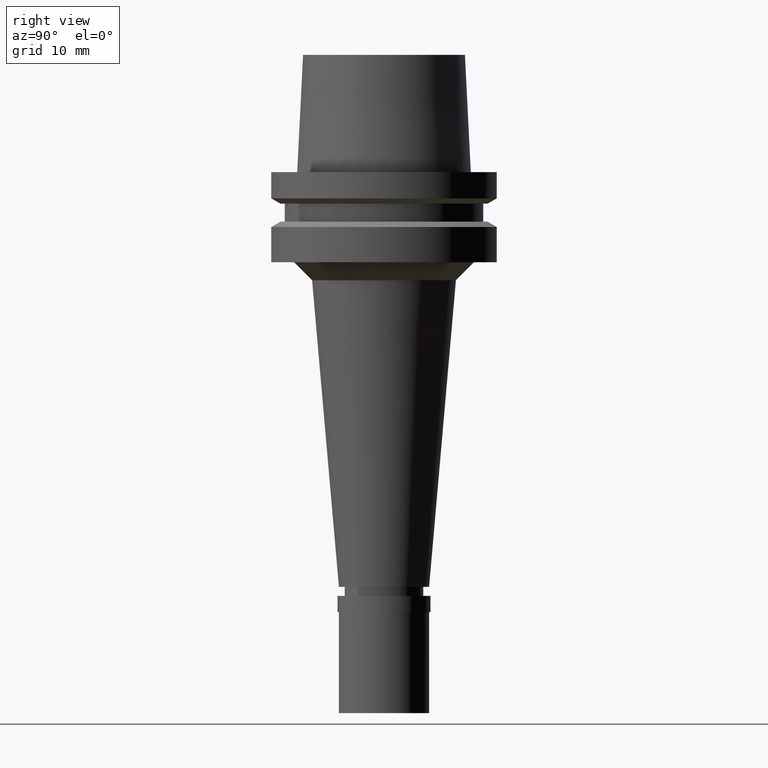
[diagram: clean part render]
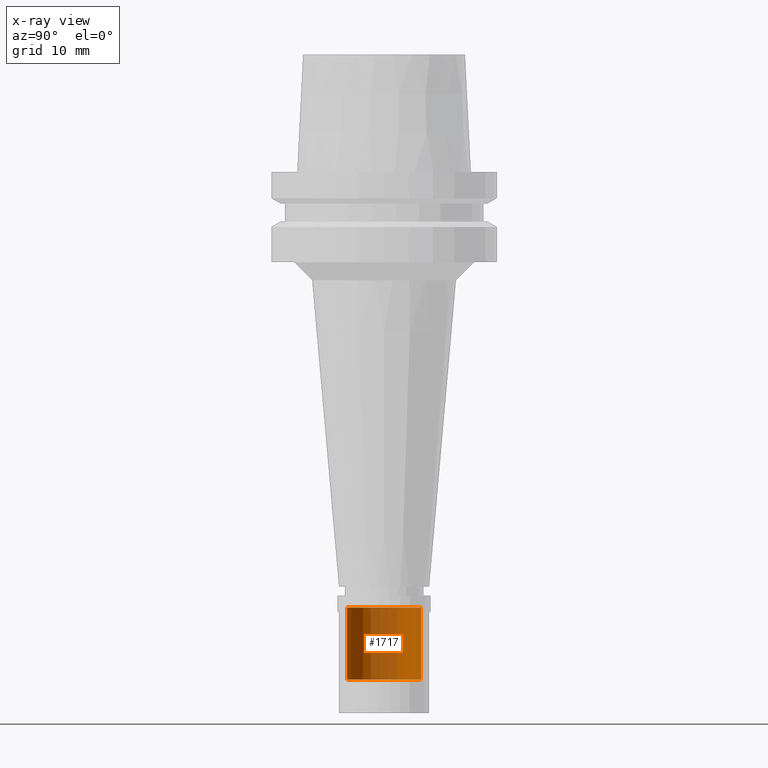
[diagram: x-ray — body ghosted, one internal face saturated and labeled with its STEP entity id]
A machine part, right view, then the same camera in x-ray: the body is ghosted and one INTERNAL B-rep face — a face not visible from any outside direction — is saturated and labeled: STEP entity #1717.
In plain terms, the highlighted cylindrical surface (partial cylindrical patch) has radius 4.1 mm, axis along (0, 0, 1).
Its self-contained STEP definition (entity closure, byte-faithful):
#183 = CARTESIAN_POINT ( 'NONE',  ( 0.0000000000000000000, 0.0000000000000000000, -56.30000000000000426 ) ) ;
#202 = ORIENTED_EDGE ( 'NONE', *, *, #501, .T. ) ;
#213 = CIRCLE ( 'NONE', #556, 4.100000000000000533 ) ;
#255 = VECTOR ( 'NONE', #283, 1000.000000000000000 ) ;
#283 = DIRECTION ( 'NONE',  ( 0.0000000000000000000, 0.0000000000000000000, -1.000000000000000000 ) ) ;
#343 = LINE ( 'NONE', #540, #255 ) ;
#485 = CYLINDRICAL_SURFACE ( 'NONE', #2606, 4.100000000000000533 ) ;
#501 = EDGE_CURVE ( 'NONE', #1636, #1895, #213, .T. ) ;
#540 = CARTESIAN_POINT ( 'NONE',  ( 0.0000000000000000000, -4.100000000000000533, -48.30000000000000426 ) ) ;
#556 = AXIS2_PLACEMENT_3D ( 'NONE', #1942, #2628, #1959 ) ;
#798 = EDGE_CURVE ( 'NONE', #2432, #2448, #1383, .T. ) ;
#889 = ORIENTED_EDGE ( 'NONE', *, *, #2356, .T. ) ;
#902 = CARTESIAN_POINT ( 'NONE',  ( 0.0000000000000000000, 4.100000000000000533, -48.30000000000000426 ) ) ;
#1029 = ORIENTED_EDGE ( 'NONE', *, *, #798, .T. ) ;
#1064 = EDGE_CURVE ( 'NONE', #1636, #2448, #343, .T. ) ;
#1077 = EDGE_LOOP ( 'NONE', ( #1029, #1962, #202, #889 ) ) ;
#1090 = AXIS2_PLACEMENT_3D ( 'NONE', #183, #1841, #2676 ) ;
#1383 = CIRCLE ( 'NONE', #1090, 4.100000000000000533 ) ;
#1631 = VECTOR ( 'NONE', #2554, 1000.000000000000000 ) ;
#1636 = VERTEX_POINT ( 'NONE', #1812 ) ;
#1715 = DIRECTION ( 'NONE',  ( 0.0000000000000000000, 0.0000000000000000000, 1.000000000000000000 ) ) ;
#1717 = ADVANCED_FACE ( 'NONE', ( #2162 ), #485, .T. ) ;
#1735 = CARTESIAN_POINT ( 'NONE',  ( 0.0000000000000000000, 4.100000000000000533, -56.30000000000000426 ) ) ;
#1751 = CARTESIAN_POINT ( 'NONE',  ( 0.0000000000000000000, -4.100000000000000533, -56.30000000000000426 ) ) ;
#1812 = CARTESIAN_POINT ( 'NONE',  ( 0.0000000000000000000, -4.100000000000000533, -48.30000000000000426 ) ) ;
#1841 = DIRECTION ( 'NONE',  ( 0.0000000000000000000, 0.0000000000000000000, 1.000000000000000000 ) ) ;
#1895 = VERTEX_POINT ( 'NONE', #2190 ) ;
#1942 = CARTESIAN_POINT ( 'NONE',  ( 0.0000000000000000000, 0.0000000000000000000, -48.30000000000000426 ) ) ;
#1957 = LINE ( 'NONE', #902, #1631 ) ;
#1959 = DIRECTION ( 'NONE',  ( 0.0000000000000000000, -1.000000000000000000, 0.0000000000000000000 ) ) ;
#1962 = ORIENTED_EDGE ( 'NONE', *, *, #1064, .F. ) ;
#2126 = CARTESIAN_POINT ( 'NONE',  ( 0.0000000000000000000, 0.0000000000000000000, -59.76500000000000057 ) ) ;
#2162 = FACE_OUTER_BOUND ( 'NONE', #1077, .T. ) ;
#2190 = CARTESIAN_POINT ( 'NONE',  ( 0.0000000000000000000, 4.100000000000000533, -48.30000000000000426 ) ) ;
#2356 = EDGE_CURVE ( 'NONE', #1895, #2432, #1957, .T. ) ;
#2432 = VERTEX_POINT ( 'NONE', #1735 ) ;
#2448 = VERTEX_POINT ( 'NONE', #1751 ) ;
#2554 = DIRECTION ( 'NONE',  ( 0.0000000000000000000, 0.0000000000000000000, -1.000000000000000000 ) ) ;
#2557 = DIRECTION ( 'NONE',  ( 0.0000000000000000000, 1.000000000000000000, 0.0000000000000000000 ) ) ;
#2606 = AXIS2_PLACEMENT_3D ( 'NONE', #2126, #1715, #2557 ) ;
#2628 = DIRECTION ( 'NONE',  ( 0.0000000000000000000, 0.0000000000000000000, -1.000000000000000000 ) ) ;
#2676 = DIRECTION ( 'NONE',  ( 0.0000000000000000000, 1.000000000000000000, 0.0000000000000000000 ) ) ;